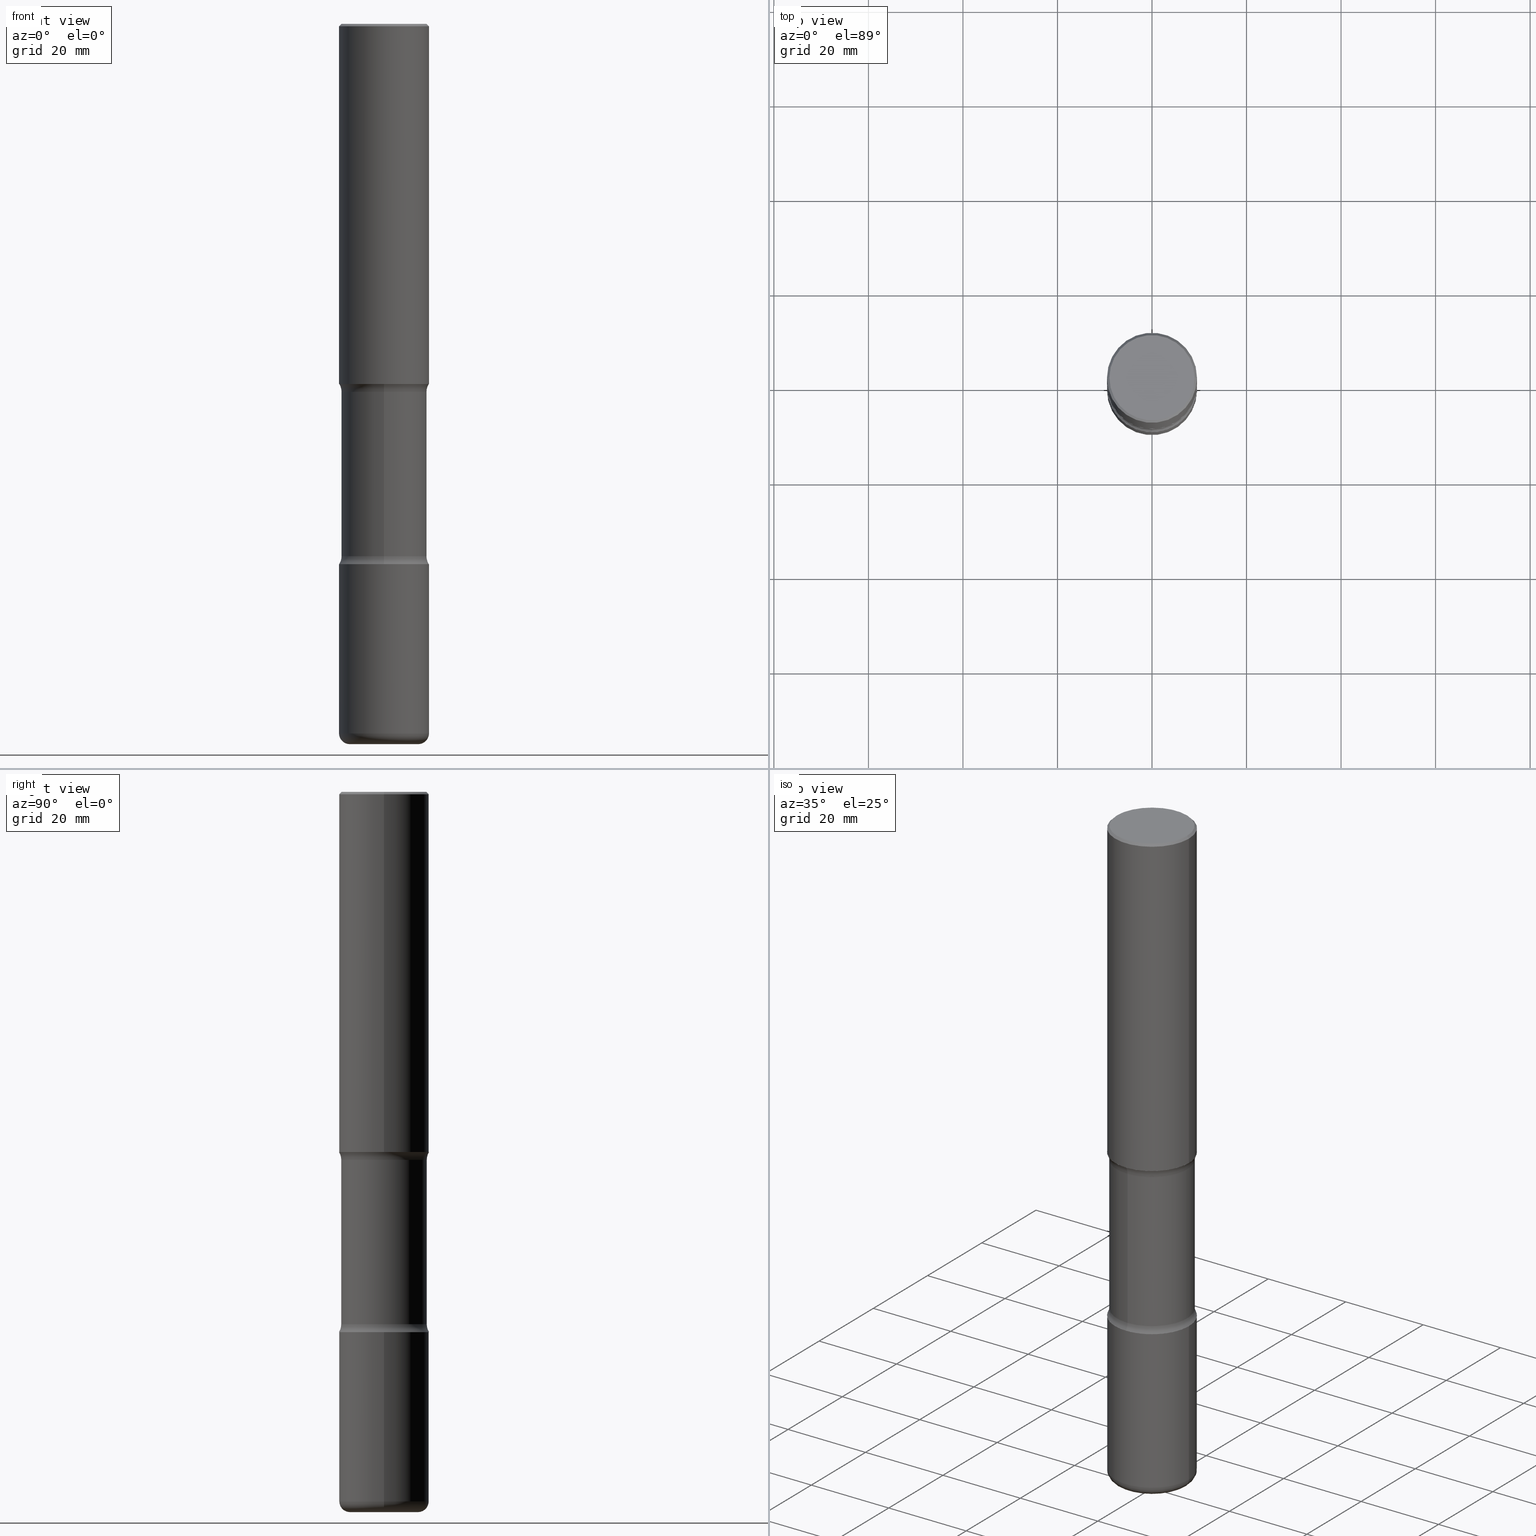
[diagram: canonical four-view strip — front | top / right | iso, engineering-drawing reading convention]
A machine part, canonical four-view strip (front | top / right | iso — engineering-drawing reading convention). The complete STEP part file that produces these views, byte-faithful:
ISO-10303-21;
HEADER;
FILE_DESCRIPTION (( 'STEP AP203' ),
    '1' );
FILE_NAME ('37938.STEP',
    '2024-03-02T01:35:51',
    ( '' ),
    ( '' ),
    'SwSTEP 2.0',
    'SolidWorks 2023',
    '' );
FILE_SCHEMA (( 'CONFIG_CONTROL_DESIGN' ));
ENDSEC;

DATA;
#1 = CARTESIAN_POINT ( 'NONE',  ( 3.360550788636623928E-15, 0.4812499999999845790, -4.434152164044672162 ) ) ;
#2 = CARTESIAN_POINT ( 'NONE',  ( -2.444052411705960129E-15, -0.3562500000000208278, -5.999999999999998224 ) ) ;
#3 = EDGE_CURVE ( 'NONE', #179, #553, #24, .T. ) ;
#4 = EDGE_CURVE ( 'NONE', #153, #480, #57, .T. ) ;
#5 = DIRECTION ( 'NONE',  ( 1.000000000000000000, -6.982962677686265922E-15, 0.000000000000000000 ) ) ;
#6 = AXIS2_PLACEMENT_3D ( 'NONE', #15, #309, #532 ) ;
#7 = CLOSED_SHELL ( 'NONE', ( #509, #275, #30, #390, #97, #241 ) ) ;
#8 = AXIS2_PLACEMENT_3D ( 'NONE', #310, #113, #143 ) ;
#9 = EDGE_LOOP ( 'NONE', ( #223, #460, #160, #371 ) ) ;
#10 = DIRECTION ( 'NONE',  ( -2.445468806185136597E-29, 3.491481338843145583E-15, 1.000000000000000000 ) ) ;
#11 = ORIENTED_EDGE ( 'NONE', *, *, #488, .F. ) ;
#12 = CARTESIAN_POINT ( 'NONE',  ( -0.3750000000000001110, 2.548781377355487113E-15, -0.02000000000000006981 ) ) ;
#13 = DIRECTION ( 'NONE',  ( 2.438088387897960049E-29, -3.491481338843145188E-15, -1.000000000000000000 ) ) ;
#14 = AXIS2_PLACEMENT_3D ( 'NONE', #116, #285, #466 ) ;
#15 = CARTESIAN_POINT ( 'NONE',  ( 4.890937612370289799E-31, -6.982962677686315028E-17, -0.02000000000000006981 ) ) ;
#16 = FACE_OUTER_BOUND ( 'NONE', #504, .T. ) ;
#17 = DESIGN_CONTEXT ( 'detailed design', #214, 'design' ) ;
#18 = CARTESIAN_POINT ( 'NONE',  ( -0.2850000000000005307, -1.860960791564669344E-14, -5.909999999999997478 ) ) ;
#19 = EDGE_CURVE ( 'NONE', #446, #533, #492, .T. ) ;
#20 = DIRECTION ( 'NONE',  ( 6.982962677686265922E-15, 1.000000000000000000, -3.401578717594097873E-15 ) ) ;
#21 = ORIENTED_EDGE ( 'NONE', *, *, #386, .T. ) ;
#22 = EDGE_LOOP ( 'NONE', ( #283, #112 ) ) ;
#23 = CIRCLE ( 'NONE', #191, 0.2850000000000005307 ) ;
#24 = CIRCLE ( 'NONE', #335, 0.3750000000000004996 ) ;
#25 = DIRECTION ( 'NONE',  ( -6.982962677686265922E-15, -1.000000000000000000, 3.401578717594097873E-15 ) ) ;
#26 = CIRCLE ( 'NONE', #192, 0.2850000000000005307 ) ;
#27 = CARTESIAN_POINT ( 'NONE',  ( 4.890937612370289799E-31, -6.982962677686315028E-17, -0.02000000000000006981 ) ) ;
#28 = DIRECTION ( 'NONE',  ( -2.445468806185136877E-29, 3.491481338843145188E-15, 1.000000000000000000 ) ) ;
#29 = APPROVAL ( #499, 'UNSPECIFIED' ) ;
#30 = ADVANCED_FACE ( 'NONE', ( #16 ), #535, .T. ) ;
#31 = DIRECTION ( 'NONE',  ( -2.445468806185136877E-29, 3.491481338843145188E-15, 1.000000000000000000 ) ) ;
#32 = PERSON_AND_ORGANIZATION ( #346, #381 ) ;
#33 = CIRCLE ( 'NONE', #558, 0.3750000000000003886 ) ;
#34 = AXIS2_PLACEMENT_3D ( 'NONE', #292, #473, #84 ) ;
#35 = FACE_OUTER_BOUND ( 'NONE', #367, .T. ) ;
#36 = DIRECTION ( 'NONE',  ( 1.000000000000000000, -6.982962677686252511E-15, 0.000000000000000000 ) ) ;
#37 = EDGE_CURVE ( 'NONE', #185, #153, #166, .T. ) ;
#38 = ORIENTED_EDGE ( 'NONE', *, *, #348, .T. ) ;
#39 = PERSON_AND_ORGANIZATION ( #346, #381 ) ;
#40 = ORIENTED_EDGE ( 'NONE', *, *, #4, .T. ) ;
#41 = FACE_OUTER_BOUND ( 'NONE', #200, .T. ) ;
#42 = PERSON_AND_ORGANIZATION ( #346, #381 ) ;
#43 = PRODUCT_DEFINITION_FORMATION_WITH_SPECIFIED_SOURCE ( 'ANY', '', #461, .NOT_KNOWN. ) ;
#44 = DIRECTION ( 'NONE',  ( 1.000000000000000000, -6.982962677686265922E-15, 4.876176775795935793E-29 ) ) ;
#45 = DIRECTION ( 'NONE',  ( 1.000000000000000000, -6.982962677686265922E-15, 0.000000000000000000 ) ) ;
#46 = ORIENTED_EDGE ( 'NONE', *, *, #348, .F. ) ;
#47 = DIRECTION ( 'NONE',  ( 6.982962677686265922E-15, 1.000000000000000000, -2.913971193241877611E-15 ) ) ;
#48 = CC_DESIGN_DATE_AND_TIME_ASSIGNMENT ( #250, #471, ( #319 ) ) ;
#49 = VERTEX_POINT ( 'NONE', #322 ) ;
#50 = DIRECTION ( 'NONE',  ( -1.000000000000000000, 6.982962677686265922E-15, -4.876176775795935793E-29 ) ) ;
#51 = AXIS2_PLACEMENT_3D ( 'NONE', #436, #518, #350 ) ;
#52 = VECTOR ( 'NONE', #313, 39.37007874015748143 ) ;
#53 = AXIS2_PLACEMENT_3D ( 'NONE', #126, #389, #56 ) ;
#54 = CYLINDRICAL_SURFACE ( 'NONE', #287, 0.3750000000000004441 ) ;
#55 = EDGE_CURVE ( 'NONE', #456, #470, #140, .T. ) ;
#56 = DIRECTION ( 'NONE',  ( 1.000000000000000000, -6.982962677686266711E-15, 4.876231632511987623E-29 ) ) ;
#57 = LINE ( 'NONE', #272, #175 ) ;
#58 = AXIS2_PLACEMENT_3D ( 'NONE', #71, #63, #232 ) ;
#59 =( NAMED_UNIT ( * ) PLANE_ANGLE_UNIT ( ) SI_UNIT ( $, .RADIAN. ) );
#60 = CARTESIAN_POINT ( 'NONE',  ( 0.3750000000000003886, -1.833027702892650691E-14, -4.499999999999999112 ) ) ;
#61 = EDGE_CURVE ( 'NONE', #446, #470, #355, .T. ) ;
#62 = PLANE ( 'NONE',  #173 ) ;
#63 = DIRECTION ( 'NONE',  ( 2.508247471065963170E-29, -3.401578717594097873E-15, -1.000000000000000000 ) ) ;
#64 = CC_DESIGN_PERSON_AND_ORGANIZATION_ASSIGNMENT ( #325, #111, ( #43 ) ) ;
#65 = DIRECTION ( 'NONE',  ( -2.445468806185136597E-29, 3.491481338843145583E-15, 1.000000000000000000 ) ) ;
#66 = CARTESIAN_POINT ( 'NONE',  ( 2.487680453925879638E-15, 0.3562499999999791389, -6.000000000000000888 ) ) ;
#67 = CC_DESIGN_SECURITY_CLASSIFICATION ( #349, ( #43 ) ) ;
#68 = ORIENTED_EDGE ( 'NONE', *, *, #19, .F. ) ;
#69 = FACE_OUTER_BOUND ( 'NONE', #107, .T. ) ;
#70 = TOROIDAL_SURFACE ( 'NONE', #58, 0.4812499999999999556, 0.1249999999999999584 ) ;
#71 = CARTESIAN_POINT ( 'NONE',  ( 7.402053284434616373E-29, -1.084094290665388719E-14, -3.065847835955329614 ) ) ;
#72 = ORIENTED_EDGE ( 'NONE', *, *, #320, .F. ) ;
#73 = ORIENTED_EDGE ( 'NONE', *, *, #55, .F. ) ;
#74 = CARTESIAN_POINT ( 'NONE',  ( 1.083944695982298980E-28, -1.548767942740887449E-14, -4.434152164044669497 ) ) ;
#75 = APPROVAL_ROLE ( '' ) ;
#76 = VERTEX_POINT ( 'NONE', #60 ) ;
#77 = CARTESIAN_POINT ( 'NONE',  ( 0.000000000000000000, 0.000000000000000000, 0.000000000000000000 ) ) ;
#78 = ORIENTED_EDGE ( 'NONE', *, *, #127, .T. ) ;
#79 = AXIS2_PLACEMENT_3D ( 'NONE', #196, #189, #490 ) ;
#80 = AXIS2_PLACEMENT_3D ( 'NONE', #435, #135, #305 ) ;
#81 = ORIENTED_EDGE ( 'NONE', *, *, #258, .T. ) ;
#82 = ORIENTED_EDGE ( 'NONE', *, *, #3, .T. ) ;
#83 = COORDINATED_UNIVERSAL_TIME_OFFSET ( 5, 0, .BEHIND. ) ;
#84 = DIRECTION ( 'NONE',  ( 6.982962677686265922E-15, 1.000000000000000000, -3.401578717594097873E-15 ) ) ;
#85 = PERSON_AND_ORGANIZATION_ROLE ( 'design_owner' ) ;
#86 = CARTESIAN_POINT ( 'NONE',  ( 2.618611004132426142E-15, 0.3749999999999898415, -3.000000000000000444 ) ) ;
#87 = EDGE_CURVE ( 'NONE', #216, #330, #26, .T. ) ;
#88 = DIRECTION ( 'NONE',  ( 2.508247471065963170E-29, -3.401578717594097873E-15, -1.000000000000000000 ) ) ;
#89 = CIRCLE ( 'NONE', #211, 0.1249999999999998335 ) ;
#90 = CARTESIAN_POINT ( 'NONE',  ( -0.2850000000000005307, -1.844698034480258891E-14, -5.999999999999998224 ) ) ;
#91 = DIRECTION ( 'NONE',  ( 1.000000000000000000, -6.982962677686270655E-15, 4.883557194083114583E-29 ) ) ;
#92 = CARTESIAN_POINT ( 'NONE',  ( -0.3750000000000003886, -1.550862510957819116E-14, -4.499999999999999112 ) ) ;
#93 = CC_DESIGN_APPROVAL ( #468, ( #43 ) ) ;
#94 = EDGE_CURVE ( 'NONE', #337, #179, #138, .T. ) ;
#95 = DIRECTION ( 'NONE',  ( 6.982962677686265133E-15, 1.000000000000000000, -3.067338098149347905E-15 ) ) ;
#96 =( NAMED_UNIT ( * ) SI_UNIT ( $, .STERADIAN. ) SOLID_ANGLE_UNIT ( ) );
#97 = ADVANCED_FACE ( 'NONE', ( #399 ), #442, .F. ) ;
#98 = ORIENTED_EDGE ( 'NONE', *, *, #428, .F. ) ;
#99 = AXIS2_PLACEMENT_3D ( 'NONE', #536, #450, #539 ) ;
#100 = CLOSED_SHELL ( 'NONE', ( #398, #225, #521, #125, #299, #505, #293, #487 ) ) ;
#101 = TOROIDAL_SURFACE ( 'NONE', #514, 0.4812500000000000666, 0.1249999999999998612 ) ;
#102 = DIRECTION ( 'NONE',  ( 0.000000000000000000, 0.000000000000000000, 1.000000000000000000 ) ) ;
#103 = PRODUCT_RELATED_PRODUCT_CATEGORY ( 'detail', '', ( #461 ) ) ;
#104 = CARTESIAN_POINT ( 'NONE',  ( 7.242238421234168109E-29, -1.060929794840300496E-14, -2.999999999999999112 ) ) ;
#105 = DIRECTION ( 'NONE',  ( 1.000000000000000000, 0.000000000000000000, 0.000000000000000000 ) ) ;
#106 = DIRECTION ( 'NONE',  ( -2.445468806185136597E-29, 3.491481338843145583E-15, 1.000000000000000000 ) ) ;
#107 = EDGE_LOOP ( 'NONE', ( #78, #81, #495, #73 ) ) ;
#108 = EDGE_CURVE ( 'NONE', #330, #153, #408, .T. ) ;
#109 = LINE ( 'NONE', #66, #437 ) ;
#110 = VERTEX_POINT ( 'NONE', #366 ) ;
#111 = PERSON_AND_ORGANIZATION_ROLE ( 'design_supplier' ) ;
#112 = ORIENTED_EDGE ( 'NONE', *, *, #320, .T. ) ;
#113 = DIRECTION ( 'NONE',  ( -1.000000000000000000, 6.982962677686265922E-15, -4.883557194083112901E-29 ) ) ;
#114 = CALENDAR_DATE ( 2024, 1, 3 ) ;
#115 = DIRECTION ( 'NONE',  ( -2.445468806185136597E-29, 3.491481338843145583E-15, 1.000000000000000000 ) ) ;
#116 = CARTESIAN_POINT ( 'NONE',  ( 4.890937612370289799E-31, -6.982962677686315028E-17, -0.02000000000000006981 ) ) ;
#117 = CIRCLE ( 'NONE', #324, 0.3750000000000003886 ) ;
#118 = APPROVAL_PERSON_ORGANIZATION ( #378, #303, #155 ) ;
#119 = APPROVAL_DATE_TIME ( #368, #29 ) ;
#120 = TOROIDAL_SURFACE ( 'NONE', #439, 0.2850000000000005307, 0.09000000000000020484 ) ;
#121 = LINE ( 'NONE', #207, #478 ) ;
#122 = PLANE ( 'NONE',  #247 ) ;
#123 = ORIENTED_EDGE ( 'NONE', *, *, #375, .F. ) ;
#124 = CC_DESIGN_PERSON_AND_ORGANIZATION_ASSIGNMENT ( #280, #85, ( #461 ) ) ;
#125 = ADVANCED_FACE ( 'NONE', ( #448 ), #70, .F. ) ;
#126 = CARTESIAN_POINT ( 'NONE',  ( -1.043851414335219820E-46, 1.490343170380447200E-32, 4.268512490100411279E-18 ) ) ;
#127 = EDGE_CURVE ( 'NONE', #456, #110, #117, .T. ) ;
#128 = CARTESIAN_POINT ( 'NONE',  ( 2.487680453925806274E-15, 0.3562499999999891309, -3.065847835955330503 ) ) ;
#129 = APPLICATION_CONTEXT ( 'configuration controlled 3d designs of mechanical parts and assemblies' ) ;
#130 = CIRCLE ( 'NONE', #203, 0.3750000000000004996 ) ;
#131 = LINE ( 'NONE', #2, #144 ) ;
#132 = EDGE_LOOP ( 'NONE', ( #141, #419 ) ) ;
#133 = DIRECTION ( 'NONE',  ( 2.508247471065963170E-29, -3.401578717594097873E-15, -1.000000000000000000 ) ) ;
#134 = EDGE_CURVE ( 'NONE', #337, #502, #109, .T. ) ;
#135 = DIRECTION ( 'NONE',  ( 2.438088387897960049E-29, -3.491481338843145188E-15, -1.000000000000000000 ) ) ;
#136 = ORIENTED_EDGE ( 'NONE', *, *, #300, .T. ) ;
#137 = APPROVAL_PERSON_ORGANIZATION ( #32, #468, #75 ) ;
#138 = CIRCLE ( 'NONE', #8, 0.1249999999999999584 ) ;
#139 = CARTESIAN_POINT ( 'NONE',  ( 7.402053284434616373E-29, -1.084094290665388719E-14, -3.065847835955329614 ) ) ;
#140 = LINE ( 'NONE', #316, #288 ) ;
#141 = ORIENTED_EDGE ( 'NONE', *, *, #428, .T. ) ;
#142 = DIRECTION ( 'NONE',  ( 1.000000000000000000, -6.982962677686261189E-15, 0.000000000000000000 ) ) ;
#143 = DIRECTION ( 'NONE',  ( -6.982962677686265133E-15, -1.000000000000000000, 0.000000000000000000 ) ) ;
#144 = VECTOR ( 'NONE', #172, 39.37007874015748143 ) ;
#145 = LENGTH_MEASURE_WITH_UNIT ( LENGTH_MEASURE( 0.02539999999999999897 ), #358 );
#146 = DIRECTION ( 'NONE',  ( -2.445468806185136877E-29, 3.491481338843145188E-15, 1.000000000000000000 ) ) ;
#147 = FACE_OUTER_BOUND ( 'NONE', #294, .T. ) ;
#148 = EDGE_LOOP ( 'NONE', ( #400, #239 ) ) ;
#149 = DIRECTION ( 'NONE',  ( 1.000000000000000000, -6.982962677686261189E-15, 0.000000000000000000 ) ) ;
#150 = EDGE_CURVE ( 'NONE', #165, #470, #500, .T. ) ;
#151 = SHAPE_DEFINITION_REPRESENTATION ( #281, #556 ) ;
#152 = MANIFOLD_SOLID_BREP ( 'Body-Move/Copy2[4]', #100 ) ;
#153 = VERTEX_POINT ( 'NONE', #383 ) ;
#154 = DIRECTION ( 'NONE',  ( -1.000000000000000000, 6.982962677686265922E-15, 0.000000000000000000 ) ) ;
#155 = APPROVAL_ROLE ( '' ) ;
#156 = CARTESIAN_POINT ( 'NONE',  ( 7.407401089244291879E-29, -1.083328454578828421E-14, -3.065847835955329614 ) ) ;
#157 = EDGE_CURVE ( 'NONE', #49, #538, #227, .T. ) ;
#158 = ORIENTED_EDGE ( 'NONE', *, *, #61, .F. ) ;
#159 = CALENDAR_DATE ( 2024, 1, 3 ) ;
#160 = ORIENTED_EDGE ( 'NONE', *, *, #169, .F. ) ;
#161 = DIRECTION ( 'NONE',  ( 1.000000000000000000, -6.982962677686266711E-15, 4.876176775795935793E-29 ) ) ;
#162 = MANIFOLD_SOLID_BREP ( 'Body-Move/Copy2[2]', #7 ) ;
#163 = CC_DESIGN_DATE_AND_TIME_ASSIGNMENT ( #295, #208, ( #349 ) ) ;
#164 = DATE_AND_TIME ( #199, #431 ) ;
#165 = VERTEX_POINT ( 'NONE', #254 ) ;
#166 = CIRCLE ( 'NONE', #219, 0.3750000000000004996 ) ;
#167 = AXIS2_PLACEMENT_3D ( 'NONE', #18, #187, #269 ) ;
#168 = DIRECTION ( 'NONE',  ( 1.000000000000000000, -6.982962677686265922E-15, 0.000000000000000000 ) ) ;
#169 = EDGE_CURVE ( 'NONE', #502, #538, #395, .T. ) ;
#170 = ORIENTED_EDGE ( 'NONE', *, *, #94, .F. ) ;
#171 = FACE_OUTER_BOUND ( 'NONE', #274, .T. ) ;
#172 = DIRECTION ( 'NONE',  ( 2.508247471065963170E-29, -3.401578717594097873E-15, -1.000000000000000000 ) ) ;
#173 = AXIS2_PLACEMENT_3D ( 'NONE', #352, #410, #25 ) ;
#174 = FACE_OUTER_BOUND ( 'NONE', #416, .T. ) ;
#175 = VECTOR ( 'NONE', #146, 39.37007874015748143 ) ;
#176 = CIRCLE ( 'NONE', #314, 0.3750000000000003886 ) ;
#177 = CARTESIAN_POINT ( 'NONE',  ( 0.000000000000000000, 0.000000000000000000, 0.000000000000000000 ) ) ;
#178 = CARTESIAN_POINT ( 'NONE',  ( 1.100460962783311244E-28, -1.571166602479415374E-14, -4.499999999999999112 ) ) ;
#179 = VERTEX_POINT ( 'NONE', #86 ) ;
#180 = DIRECTION ( 'NONE',  ( 1.000000000000000000, -6.982962677686263555E-15, 0.000000000000000000 ) ) ;
#181 = EDGE_CURVE ( 'NONE', #337, #249, #457, .T. ) ;
#182 = CIRCLE ( 'NONE', #286, 0.3750000000000003886 ) ;
#183 = CARTESIAN_POINT ( 'NONE',  ( 1.445272064455415119E-28, -2.063465471256298313E-14, -5.909999999999997478 ) ) ;
#184 = ADVANCED_FACE ( 'NONE', ( #171 ), #122, .F. ) ;
#185 = VERTEX_POINT ( 'NONE', #559 ) ;
#186 = APPLICATION_PROTOCOL_DEFINITION ( 'international standard', 'config_control_design', 1994, #129 ) ;
#187 = DIRECTION ( 'NONE',  ( 7.105427357601001859E-15, 1.000000000000000000, -3.491481338843145583E-15 ) ) ;
#188 = EDGE_LOOP ( 'NONE', ( #72, #265, #136, #198 ) ) ;
#189 = DIRECTION ( 'NONE',  ( 1.000000000000000000, -6.860497997771530774E-15, 4.841899869197618814E-29 ) ) ;
#190 = ORIENTED_EDGE ( 'NONE', *, *, #169, .T. ) ;
#191 = AXIS2_PLACEMENT_3D ( 'NONE', #315, #530, #142 ) ;
#192 = AXIS2_PLACEMENT_3D ( 'NONE', #455, #194, #149 ) ;
#193 = ADVANCED_FACE ( 'NONE', ( #430 ), #547, .T. ) ;
#194 = DIRECTION ( 'NONE',  ( -2.445468806185136597E-29, 3.491481338843145583E-15, 1.000000000000000000 ) ) ;
#195 = ORIENTED_EDGE ( 'NONE', *, *, #150, .F. ) ;
#196 = CARTESIAN_POINT ( 'NONE',  ( -3.301614661427474544E-15, -0.4812500000000108358, -3.065847835955327838 ) ) ;
#197 = DIRECTION ( 'NONE',  ( -2.445468806185136597E-29, 3.491481338843145583E-15, 1.000000000000000000 ) ) ;
#198 = ORIENTED_EDGE ( 'NONE', *, *, #233, .F. ) ;
#199 = CALENDAR_DATE ( 2024, 1, 3 ) ;
#200 = EDGE_LOOP ( 'NONE', ( #465, #414, #458, #190 ) ) ;
#201 = DIRECTION ( 'NONE',  ( 6.982962677686265922E-15, 1.000000000000000000, -3.401578717594097873E-15 ) ) ;
#202 = EDGE_CURVE ( 'NONE', #216, #185, #308, .T. ) ;
#203 = AXIS2_PLACEMENT_3D ( 'NONE', #347, #477, #180 ) ;
#204 = DIRECTION ( 'NONE',  ( 2.508247471065963170E-29, -3.401578717594097873E-15, -1.000000000000000000 ) ) ;
#205 = ORIENTED_EDGE ( 'NONE', *, *, #37, .F. ) ;
#206 = ORIENTED_EDGE ( 'NONE', *, *, #332, .T. ) ;
#207 = CARTESIAN_POINT ( 'NONE',  ( -0.3750000000000002220, 2.664535259100377275E-15, -1.844600658845590719E-29 ) ) ;
#208 = DATE_TIME_ROLE ( 'classification_date' ) ;
#209 = CYLINDRICAL_SURFACE ( 'NONE', #301, 0.3750000000000004441 ) ;
#210 = APPROVAL_PERSON_ORGANIZATION ( #253, #29, #376 ) ;
#211 = AXIS2_PLACEMENT_3D ( 'NONE', #1, #417, #369 ) ;
#212 = DIRECTION ( 'NONE',  ( -2.445468806185136597E-29, 3.491481338843145583E-15, 1.000000000000000000 ) ) ;
#213 = CYLINDRICAL_SURFACE ( 'NONE', #469, 0.3562500000000000111 ) ;
#214 = APPLICATION_CONTEXT ( 'configuration controlled 3d designs of mechanical parts and assemblies' ) ;
#215 = DIRECTION ( 'NONE',  ( 6.982962677686265133E-15, 1.000000000000000000, -3.067338098149347905E-15 ) ) ;
#216 = VERTEX_POINT ( 'NONE', #282 ) ;
#217 = ADVANCED_FACE ( 'NONE', ( #415 ), #209, .T. ) ;
#218 = LOCAL_TIME ( 20, 35, 51.00000000000000000, #506 ) ;
#219 = AXIS2_PLACEMENT_3D ( 'NONE', #183, #229, #238 ) ;
#220 = CIRCLE ( 'NONE', #537, 0.3750000000000003886 ) ;
#221 = LINE ( 'NONE', #12, #342 ) ;
#222 = PLANE ( 'NONE',  #80 ) ;
#223 = ORIENTED_EDGE ( 'NONE', *, *, #181, .T. ) ;
#224 = CIRCLE ( 'NONE', #403, 0.3750000000000003886 ) ;
#225 = ADVANCED_FACE ( 'NONE', ( #464 ), #101, .F. ) ;
#226 = CARTESIAN_POINT ( 'NONE',  ( -1.043851414335219820E-46, 1.490343170380447200E-32, 4.268512490100411279E-18 ) ) ;
#227 = CIRCLE ( 'NONE', #255, 0.1249999999999998335 ) ;
#228 = DIRECTION ( 'NONE',  ( -2.445468806185136597E-29, 3.491481338843145583E-15, 1.000000000000000000 ) ) ;
#229 = DIRECTION ( 'NONE',  ( -2.445468806185136597E-29, 3.491481338843145583E-15, 1.000000000000000000 ) ) ;
#230 = ORIENTED_EDGE ( 'NONE', *, *, #375, .T. ) ;
#231 = DIRECTION ( 'NONE',  ( 1.000000000000000000, -6.982962677686266711E-15, 4.876176775795935793E-29 ) ) ;
#232 = DIRECTION ( 'NONE',  ( 6.982962677686265922E-15, 1.000000000000000000, -3.401578717594097873E-15 ) ) ;
#233 = EDGE_CURVE ( 'NONE', #373, #502, #89, .T. ) ;
#234 = CARTESIAN_POINT ( 'NONE',  ( 2.487680453925840195E-15, 0.3562499999999844680, -4.434152164044670386 ) ) ;
#235 = DIRECTION ( 'NONE',  ( 2.508247471065963170E-29, -3.401578717594097873E-15, -1.000000000000000000 ) ) ;
#236 = TOROIDAL_SURFACE ( 'NONE', #370, 0.4812500000000000666, 0.1249999999999998612 ) ;
#237 = DIRECTION ( 'NONE',  ( 1.000000000000000000, -6.982962677686265922E-15, 0.000000000000000000 ) ) ;
#238 = DIRECTION ( 'NONE',  ( 1.000000000000000000, -6.982962677686263555E-15, 0.000000000000000000 ) ) ;
#239 = ORIENTED_EDGE ( 'NONE', *, *, #420, .F. ) ;
#240 = APPROVAL_STATUS ( 'not_yet_approved' ) ;
#241 = ADVANCED_FACE ( 'NONE', ( #35 ), #374, .T. ) ;
#242 = DIRECTION ( 'NONE',  ( 6.982962677686265133E-15, 1.000000000000000000, -3.067338098149347905E-15 ) ) ;
#243 = ORIENTED_EDGE ( 'NONE', *, *, #363, .F. ) ;
#244 = APPROVAL_DATE_TIME ( #462, #303 ) ;
#245 = CARTESIAN_POINT ( 'NONE',  ( 1.084358079904955852E-28, -1.548175953435291656E-14, -4.434152164044670386 ) ) ;
#246 = TOROIDAL_SURFACE ( 'NONE', #513, 0.4812499999999999556, 0.1249999999999999584 ) ;
#247 = AXIS2_PLACEMENT_3D ( 'NONE', #459, #517, #555 ) ;
#248 = FACE_OUTER_BOUND ( 'NONE', #406, .T. ) ;
#249 = VERTEX_POINT ( 'NONE', #296 ) ;
#250 = DATE_AND_TIME ( #554, #467 ) ;
#251 = DIRECTION ( 'NONE',  ( 6.982962677686265133E-15, 1.000000000000000000, -3.067338098149347905E-15 ) ) ;
#252 = ORIENTED_EDGE ( 'NONE', *, *, #516, .F. ) ;
#253 = PERSON_AND_ORGANIZATION ( #346, #381 ) ;
#254 = CARTESIAN_POINT ( 'NONE',  ( -0.3750000000000001110, 2.548781377355487113E-15, -0.02000000000000006981 ) ) ;
#255 = AXIS2_PLACEMENT_3D ( 'NONE', #340, #475, #329 ) ;
#256 = CARTESIAN_POINT ( 'NONE',  ( 1.083944695982298980E-28, -1.548767942740887449E-14, -4.434152164044669497 ) ) ;
#257 = DIRECTION ( 'NONE',  ( 2.508247471065963170E-29, -3.401578717594097873E-15, -1.000000000000000000 ) ) ;
#258 = EDGE_CURVE ( 'NONE', #110, #165, #121, .T. ) ;
#259 = FACE_OUTER_BOUND ( 'NONE', #361, .T. ) ;
#260 = CC_DESIGN_APPROVAL ( #29, ( #319 ) ) ;
#261 = CARTESIAN_POINT ( 'NONE',  ( 1.100460962783311244E-28, -1.571166602479415374E-14, -4.499999999999999112 ) ) ;
#262 = AXIS2_PLACEMENT_3D ( 'NONE', #27, #197, #168 ) ;
#263 = CARTESIAN_POINT ( 'NONE',  ( 7.407401089244291879E-29, -1.083328454578828421E-14, -3.065847835955329614 ) ) ;
#264 =( CONVERSION_BASED_UNIT ( 'INCH', #145 ) LENGTH_UNIT ( ) NAMED_UNIT ( #298 ) );
#265 = ORIENTED_EDGE ( 'NONE', *, *, #157, .T. ) ;
#266 = AXIS2_PLACEMENT_3D ( 'NONE', #552, #548, #161 ) ;
#267 = EDGE_LOOP ( 'NONE', ( #528, #38, #549, #11 ) ) ;
#268 = DIRECTION ( 'NONE',  ( 6.982962677686265922E-15, 1.000000000000000000, -2.913971193241877611E-15 ) ) ;
#269 = DIRECTION ( 'NONE',  ( -1.000000000000000000, 7.105427357601017636E-15, 0.000000000000000000 ) ) ;
#270 = CYLINDRICAL_SURFACE ( 'NONE', #99, 0.3562500000000000111 ) ;
#271 = ORIENTED_EDGE ( 'NONE', *, *, #108, .T. ) ;
#272 = CARTESIAN_POINT ( 'NONE',  ( -0.3750000000000004441, 2.664535259100378852E-15, -1.844600658845591840E-29 ) ) ;
#273 =( GEOMETRIC_REPRESENTATION_CONTEXT ( 3 ) GLOBAL_UNCERTAINTY_ASSIGNED_CONTEXT ( ( #557 ) ) GLOBAL_UNIT_ASSIGNED_CONTEXT ( ( #264, #59, #96 ) ) REPRESENTATION_CONTEXT ( 'NONE', 'WORKASPACE' ) );
#274 = EDGE_LOOP ( 'NONE', ( #21, #407 ) ) ;
#275 = ADVANCED_FACE ( 'NONE', ( #510 ), #485, .T. ) ;
#276 = PERSON_AND_ORGANIZATION_ROLE ( 'creator' ) ;
#277 = ORIENTED_EDGE ( 'NONE', *, *, #544, .T. ) ;
#278 = DIRECTION ( 'NONE',  ( 1.000000000000000000, -6.982962677686270655E-15, 4.883557194083114583E-29 ) ) ;
#279 = EDGE_LOOP ( 'NONE', ( #68, #445, #379, #356 ) ) ;
#280 = PERSON_AND_ORGANIZATION ( #346, #381 ) ;
#281 = PRODUCT_DEFINITION_SHAPE ( 'NONE', 'NONE',  #319 ) ;
#282 = CARTESIAN_POINT ( 'NONE',  ( 0.2850000000000005307, -2.293903239619945620E-14, -5.999999999999998224 ) ) ;
#283 = ORIENTED_EDGE ( 'NONE', *, *, #482, .T. ) ;
#284 = COORDINATED_UNIVERSAL_TIME_OFFSET ( 5, 0, .BEHIND. ) ;
#285 = DIRECTION ( 'NONE',  ( 2.445468806185136597E-29, -3.491481338843145583E-15, -1.000000000000000000 ) ) ;
#286 = AXIS2_PLACEMENT_3D ( 'NONE', #178, #257, #47 ) ;
#287 = AXIS2_PLACEMENT_3D ( 'NONE', #177, #344, #524 ) ;
#288 = VECTOR ( 'NONE', #31, 39.37007874015748143 ) ;
#289 = ORIENTED_EDGE ( 'NONE', *, *, #87, .T. ) ;
#290 = CIRCLE ( 'NONE', #53, 0.3550000000000000377 ) ;
#291 = COORDINATED_UNIVERSAL_TIME_OFFSET ( 5, 0, .BEHIND. ) ;
#292 = CARTESIAN_POINT ( 'NONE',  ( 7.336406418555407548E-29, -1.047444401652943320E-14, -2.999999999999999112 ) ) ;
#293 = ADVANCED_FACE ( 'NONE', ( #41 ), #236, .F. ) ;
#294 = EDGE_LOOP ( 'NONE', ( #339, #230, #359, #426 ) ) ;
#295 = DATE_AND_TIME ( #159, #454 ) ;
#296 = CARTESIAN_POINT ( 'NONE',  ( -2.508369580435144205E-15, -0.3562500000000108358, -3.065847835955328282 ) ) ;
#297 = CARTESIAN_POINT ( 'NONE',  ( 2.618611004132461246E-15, 0.3749999999999845124, -4.500000000000000888 ) ) ;
#298 = DIMENSIONAL_EXPONENTS ( 1.000000000000000000, 0.000000000000000000, 0.000000000000000000, 0.000000000000000000, 0.000000000000000000, 0.000000000000000000, 0.000000000000000000 ) ;
#299 = ADVANCED_FACE ( 'NONE', ( #248 ), #380, .F. ) ;
#300 = EDGE_CURVE ( 'NONE', #538, #502, #560, .T. ) ;
#301 = AXIS2_PLACEMENT_3D ( 'NONE', #77, #212, #44 ) ;
#302 = DIRECTION ( 'NONE',  ( -2.445468806185136597E-29, 3.491481338843145583E-15, 1.000000000000000000 ) ) ;
#303 = APPROVAL ( #542, 'UNSPECIFIED' ) ;
#304 = CARTESIAN_POINT ( 'NONE',  ( 1.445272064455415119E-28, -2.063465471256298313E-14, -5.909999999999997478 ) ) ;
#305 = DIRECTION ( 'NONE',  ( -1.000000000000000000, 6.982962677686265922E-15, -4.876176775795935793E-29 ) ) ;
#306 = AXIS2_PLACEMENT_3D ( 'NONE', #394, #228, #231 ) ;
#307 = CARTESIAN_POINT ( 'NONE',  ( 1.476698083443205790E-28, -2.081403410118529621E-14, -5.999999999999999112 ) ) ;
#308 = CIRCLE ( 'NONE', #357, 0.09000000000000020484 ) ;
#309 = DIRECTION ( 'NONE',  ( -2.445468806185136597E-29, 3.491481338843145583E-15, 1.000000000000000000 ) ) ;
#310 = CARTESIAN_POINT ( 'NONE',  ( 3.360550788636589613E-15, 0.4812499999999890754, -3.065847835955331391 ) ) ;
#311 = CARTESIAN_POINT ( 'NONE',  ( -0.3550000000000000377, 2.513866563967055858E-15, 4.268512490082953109E-18 ) ) ;
#312 = AXIS2_PLACEMENT_3D ( 'NONE', #226, #318, #397 ) ;
#313 = DIRECTION ( 'NONE',  ( 0.7071067811865472397, -7.319954787623254468E-15, -0.7071067811865477948 ) ) ;
#314 = AXIS2_PLACEMENT_3D ( 'NONE', #522, #525, #45 ) ;
#315 = CARTESIAN_POINT ( 'NONE',  ( 1.467281283711081510E-28, -2.094888803305886640E-14, -5.999999999999998224 ) ) ;
#316 = CARTESIAN_POINT ( 'NONE',  ( 0.3750000000000002220, -2.618611004132351594E-15, 1.828566290923477043E-29 ) ) ;
#317 = DIRECTION ( 'NONE',  ( 2.508247471065963170E-29, -3.401578717594097873E-15, -1.000000000000000000 ) ) ;
#318 = DIRECTION ( 'NONE',  ( -2.445468806185136597E-29, 3.491481338843145583E-15, 1.000000000000000000 ) ) ;
#319 = PRODUCT_DEFINITION ( 'UNKNOWN', '', #43, #17 ) ;
#320 = EDGE_CURVE ( 'NONE', #49, #373, #182, .T. ) ;
#321 = PERSON_AND_ORGANIZATION_ROLE ( 'creator' ) ;
#322 = CARTESIAN_POINT ( 'NONE',  ( -2.572686749164215473E-15, -0.3750000000000159317, -4.499999999999998224 ) ) ;
#323 = ORIENTED_EDGE ( 'NONE', *, *, #363, .T. ) ;
#324 = AXIS2_PLACEMENT_3D ( 'NONE', #402, #106, #451 ) ;
#325 = PERSON_AND_ORGANIZATION ( #346, #381 ) ;
#326 = DIRECTION ( 'NONE',  ( 2.508247471065963170E-29, -3.401578717594097873E-15, -1.000000000000000000 ) ) ;
#327 = ORIENTED_EDGE ( 'NONE', *, *, #94, .T. ) ;
#328 = ORIENTED_EDGE ( 'NONE', *, *, #37, .T. ) ;
#329 = DIRECTION ( 'NONE',  ( 6.860497997771531562E-15, 1.000000000000000000, 0.000000000000000000 ) ) ;
#330 = VERTEX_POINT ( 'NONE', #90 ) ;
#331 = APPROVAL_DATE_TIME ( #164, #468 ) ;
#332 = EDGE_CURVE ( 'NONE', #533, #165, #221, .T. ) ;
#333 = DIRECTION ( 'NONE',  ( -6.982962677686266711E-15, -1.000000000000000000, 3.491481338843145583E-15 ) ) ;
#334 = CC_DESIGN_APPROVAL ( #303, ( #349 ) ) ;
#335 = AXIS2_PLACEMENT_3D ( 'NONE', #104, #543, #411 ) ;
#336 = AXIS2_PLACEMENT_3D ( 'NONE', #507, #115, #278 ) ;
#337 = VERTEX_POINT ( 'NONE', #128 ) ;
#338 = DIRECTION ( 'NONE',  ( 2.508247471065963170E-29, -3.401578717594097873E-15, -1.000000000000000000 ) ) ;
#339 = ORIENTED_EDGE ( 'NONE', *, *, #409, .F. ) ;
#340 = CARTESIAN_POINT ( 'NONE',  ( -3.301614661427441806E-15, -0.4812500000000156097, -4.434152164044668609 ) ) ;
#341 = DIRECTION ( 'NONE',  ( -0.7071067811865472397, 2.468850131082253905E-15, -0.7071067811865477948 ) ) ;
#342 = VECTOR ( 'NONE', #341, 39.37007874015748143 ) ;
#343 = CARTESIAN_POINT ( 'NONE',  ( 0.3750000000000003886, -1.309305502066178637E-14, -2.999999999999999112 ) ) ;
#344 = DIRECTION ( 'NONE',  ( -2.445468806185136597E-29, 3.491481338843145583E-15, 1.000000000000000000 ) ) ;
#345 = ORIENTED_EDGE ( 'NONE', *, *, #87, .F. ) ;
#346 = PERSON ( 'UNSPECIFIED', 'UNSPECIFIED', 'UNSPECIFIED', ('UNSPECIFIED'), ('UNSPECIFIED'), ('UNSPECIFIED') ) ;
#347 = CARTESIAN_POINT ( 'NONE',  ( 1.445272064455415119E-28, -2.063465471256298313E-14, -5.909999999999997478 ) ) ;
#348 = EDGE_CURVE ( 'NONE', #153, #185, #130, .T. ) ;
#349 = SECURITY_CLASSIFICATION ( '', '', #425 ) ;
#350 = DIRECTION ( 'NONE',  ( 6.982962677686266711E-15, 1.000000000000000000, -2.913971193241876822E-15 ) ) ;
#351 = ORIENTED_EDGE ( 'NONE', *, *, #55, .T. ) ;
#352 = CARTESIAN_POINT ( 'NONE',  ( 1.100460962783311244E-28, -1.571166602479415374E-14, -4.499999999999999112 ) ) ;
#353 = ORIENTED_EDGE ( 'NONE', *, *, #516, .T. ) ;
#354 = CARTESIAN_POINT ( 'NONE',  ( -2.572686749164255311E-15, -0.3750000000000111577, -2.999999999999998224 ) ) ;
#355 = LINE ( 'NONE', #540, #52 ) ;
#356 = ORIENTED_EDGE ( 'NONE', *, *, #332, .F. ) ;
#357 = AXIS2_PLACEMENT_3D ( 'NONE', #515, #333, #36 ) ;
#358 =( LENGTH_UNIT ( ) NAMED_UNIT ( * ) SI_UNIT ( $, .METRE. ) );
#359 = ORIENTED_EDGE ( 'NONE', *, *, #134, .T. ) ;
#360 = AXIS2_PLACEMENT_3D ( 'NONE', #481, #13, #50 ) ;
#361 = EDGE_LOOP ( 'NONE', ( #328, #40, #503, #472 ) ) ;
#362 = CARTESIAN_POINT ( 'NONE',  ( 1.100460962783311244E-28, -1.571166602479415374E-14, -4.499999999999999112 ) ) ;
#363 = EDGE_CURVE ( 'NONE', #553, #179, #444, .T. ) ;
#364 = DIRECTION ( 'NONE',  ( 1.000000000000000000, -6.982962677686265922E-15, 4.876176775795935793E-29 ) ) ;
#365 = PERSON_AND_ORGANIZATION_ROLE ( 'classification_officer' ) ;
#366 = CARTESIAN_POINT ( 'NONE',  ( -0.3750000000000003886, -2.607601562552767029E-15, -2.999999999999999112 ) ) ;
#367 = EDGE_LOOP ( 'NONE', ( #519, #424, #351, #195 ) ) ;
#368 = DATE_AND_TIME ( #429, #388 ) ;
#369 = DIRECTION ( 'NONE',  ( -6.982962677686268288E-15, -1.000000000000000000, 0.000000000000000000 ) ) ;
#370 = AXIS2_PLACEMENT_3D ( 'NONE', #422, #512, #427 ) ;
#371 = ORIENTED_EDGE ( 'NONE', *, *, #134, .F. ) ;
#372 = APPLICATION_PROTOCOL_DEFINITION ( 'international standard', 'config_control_design', 1994, #214 ) ;
#373 = VERTEX_POINT ( 'NONE', #297 ) ;
#374 = CYLINDRICAL_SURFACE ( 'NONE', #266, 0.3750000000000002220 ) ;
#375 = EDGE_CURVE ( 'NONE', #249, #337, #421, .T. ) ;
#376 = APPROVAL_ROLE ( '' ) ;
#377 = DIRECTION ( 'NONE',  ( -2.445468806185136877E-29, 3.491481338843145188E-15, 1.000000000000000000 ) ) ;
#378 = PERSON_AND_ORGANIZATION ( #346, #381 ) ;
#379 = ORIENTED_EDGE ( 'NONE', *, *, #526, .T. ) ;
#380 = PLANE ( 'NONE',  #34 ) ;
#381 = ORGANIZATION ( 'UNSPECIFIED', 'UNSPECIFIED', '' ) ;
#382 = AXIS2_PLACEMENT_3D ( 'NONE', #263, #88, #95 ) ;
#383 = CARTESIAN_POINT ( 'NONE',  ( -0.3750000000000006661, -1.797011945346260428E-14, -5.909999999999997478 ) ) ;
#384 = CC_DESIGN_PERSON_AND_ORGANIZATION_ASSIGNMENT ( #550, #321, ( #319 ) ) ;
#385 = DIRECTION ( 'NONE',  ( 2.508247471065963170E-29, -3.401578717594097873E-15, -1.000000000000000000 ) ) ;
#386 = EDGE_CURVE ( 'NONE', #76, #480, #176, .T. ) ;
#387 = PLANE ( 'NONE',  #360 ) ;
#388 = LOCAL_TIME ( 20, 35, 51.00000000000000000, #83 ) ;
#389 = DIRECTION ( 'NONE',  ( -2.445468806185136597E-29, 3.491481338843145583E-15, 1.000000000000000000 ) ) ;
#390 = ADVANCED_FACE ( 'NONE', ( #486 ), #222, .F. ) ;
#391 = DIRECTION ( 'NONE',  ( 6.982962677686265133E-15, 1.000000000000000000, -3.067338098149347905E-15 ) ) ;
#392 = CARTESIAN_POINT ( 'NONE',  ( 0.3550000000000000377, -2.538996582575041048E-15, 4.268512490117958041E-18 ) ) ;
#393 = ORIENTED_EDGE ( 'NONE', *, *, #3, .F. ) ;
#394 = CARTESIAN_POINT ( 'NONE',  ( 0.000000000000000000, 0.000000000000000000, 0.000000000000000000 ) ) ;
#395 = CIRCLE ( 'NONE', #520, 0.3562500000000000111 ) ;
#396 = EDGE_LOOP ( 'NONE', ( #289, #271, #205, #413 ) ) ;
#397 = DIRECTION ( 'NONE',  ( 1.000000000000000000, -6.982962677686266711E-15, 4.876231632511987623E-29 ) ) ;
#398 = ADVANCED_FACE ( 'NONE', ( #433 ), #213, .T. ) ;
#399 = FACE_OUTER_BOUND ( 'NONE', #148, .T. ) ;
#400 = ORIENTED_EDGE ( 'NONE', *, *, #127, .F. ) ;
#401 = FACE_OUTER_BOUND ( 'NONE', #551, .T. ) ;
#402 = CARTESIAN_POINT ( 'NONE',  ( 7.336406418555407548E-29, -1.047444401652943320E-14, -2.999999999999999112 ) ) ;
#403 = AXIS2_PLACEMENT_3D ( 'NONE', #362, #65, #237 ) ;
#404 = FACE_OUTER_BOUND ( 'NONE', #22, .T. ) ;
#405 = AXIS2_PLACEMENT_3D ( 'NONE', #501, #531, #154 ) ;
#406 = EDGE_LOOP ( 'NONE', ( #393, #243 ) ) ;
#407 = ORIENTED_EDGE ( 'NONE', *, *, #488, .T. ) ;
#408 = CIRCLE ( 'NONE', #167, 0.09000000000000020484 ) ;
#409 = EDGE_CURVE ( 'NONE', #249, #538, #131, .T. ) ;
#410 = DIRECTION ( 'NONE',  ( -2.508247471065962609E-29, 3.401578717594097873E-15, 1.000000000000000000 ) ) ;
#411 = DIRECTION ( 'NONE',  ( 6.982962677686266711E-15, 1.000000000000000000, -2.913971193241876822E-15 ) ) ;
#412 = ORIENTED_EDGE ( 'NONE', *, *, #181, .F. ) ;
#413 = ORIENTED_EDGE ( 'NONE', *, *, #202, .F. ) ;
#414 = ORIENTED_EDGE ( 'NONE', *, *, #482, .F. ) ;
#415 = FACE_OUTER_BOUND ( 'NONE', #267, .T. ) ;
#416 = EDGE_LOOP ( 'NONE', ( #523, #353, #449, #46 ) ) ;
#417 = DIRECTION ( 'NONE',  ( -1.000000000000000000, 6.982962677686265922E-15, -4.883557194083112901E-29 ) ) ;
#418 = VECTOR ( 'NONE', #28, 39.37007874015748143 ) ;
#419 = ORIENTED_EDGE ( 'NONE', *, *, #19, .T. ) ;
#420 = EDGE_CURVE ( 'NONE', #110, #456, #220, .T. ) ;
#421 = CIRCLE ( 'NONE', #382, 0.3562500000000000111 ) ;
#422 = CARTESIAN_POINT ( 'NONE',  ( 1.084358079904955852E-28, -1.548175953435291656E-14, -4.434152164044670386 ) ) ;
#423 = ORIENTED_EDGE ( 'NONE', *, *, #544, .F. ) ;
#424 = ORIENTED_EDGE ( 'NONE', *, *, #420, .T. ) ;
#425 = SECURITY_CLASSIFICATION_LEVEL ( 'unclassified' ) ;
#426 = ORIENTED_EDGE ( 'NONE', *, *, #300, .F. ) ;
#427 = DIRECTION ( 'NONE',  ( 6.982962677686265922E-15, 1.000000000000000000, -3.401578717594097873E-15 ) ) ;
#428 = EDGE_CURVE ( 'NONE', #533, #446, #290, .T. ) ;
#429 = CALENDAR_DATE ( 2024, 1, 3 ) ;
#430 = FACE_OUTER_BOUND ( 'NONE', #396, .T. ) ;
#431 = LOCAL_TIME ( 20, 35, 51.00000000000000000, #284 ) ;
#432 = AXIS2_PLACEMENT_3D ( 'NONE', #256, #133, #391 ) ;
#433 = FACE_OUTER_BOUND ( 'NONE', #9, .T. ) ;
#434 = ORIENTED_EDGE ( 'NONE', *, *, #150, .T. ) ;
#435 = CARTESIAN_POINT ( 'NONE',  ( 2.478951750578624998E-15, 0.3550000000000000377, -1.237341619044266624E-15 ) ) ;
#436 = CARTESIAN_POINT ( 'NONE',  ( 7.242238421234168109E-29, -1.060929794840300496E-14, -2.999999999999999112 ) ) ;
#437 = VECTOR ( 'NONE', #235, 39.37007874015748143 ) ;
#438 = CIRCLE ( 'NONE', #6, 0.3750000000000001110 ) ;
#439 = AXIS2_PLACEMENT_3D ( 'NONE', #304, #10, #91 ) ;
#440 = DIRECTION ( 'NONE',  ( 2.508247471065963170E-29, -3.401578717594097873E-15, -1.000000000000000000 ) ) ;
#441 = CARTESIAN_POINT ( 'NONE',  ( 7.336406418555407548E-29, -1.047444401652943320E-14, -2.999999999999999112 ) ) ;
#442 = PLANE ( 'NONE',  #494 ) ;
#443 = CYLINDRICAL_SURFACE ( 'NONE', #306, 0.3750000000000002220 ) ;
#444 = CIRCLE ( 'NONE', #51, 0.3750000000000004996 ) ;
#445 = ORIENTED_EDGE ( 'NONE', *, *, #61, .T. ) ;
#446 = VERTEX_POINT ( 'NONE', #392 ) ;
#447 = LINE ( 'NONE', #529, #418 ) ;
#448 = FACE_OUTER_BOUND ( 'NONE', #541, .T. ) ;
#449 = ORIENTED_EDGE ( 'NONE', *, *, #202, .T. ) ;
#450 = DIRECTION ( 'NONE',  ( 2.508247471065963170E-29, -3.401578717594097873E-15, -1.000000000000000000 ) ) ;
#451 = DIRECTION ( 'NONE',  ( 1.000000000000000000, -6.982962677686265922E-15, 0.000000000000000000 ) ) ;
#452 = ADVANCED_FACE ( 'NONE', ( #479 ), #387, .T. ) ;
#453 = ADVANCED_FACE ( 'NONE', ( #174 ), #120, .T. ) ;
#454 = LOCAL_TIME ( 20, 35, 51.00000000000000000, #545 ) ;
#455 = CARTESIAN_POINT ( 'NONE',  ( 1.467281283711081510E-28, -2.094888803305886640E-14, -5.999999999999998224 ) ) ;
#456 = VERTEX_POINT ( 'NONE', #343 ) ;
#457 = CIRCLE ( 'NONE', #534, 0.3562500000000000111 ) ;
#458 = ORIENTED_EDGE ( 'NONE', *, *, #233, .T. ) ;
#459 = CARTESIAN_POINT ( 'NONE',  ( 1.100460962783311244E-28, -1.571166602479415374E-14, -4.499999999999999112 ) ) ;
#460 = ORIENTED_EDGE ( 'NONE', *, *, #409, .T. ) ;
#461 = PRODUCT ( '37938', '37938', '', ( #474 ) ) ;
#462 = DATE_AND_TIME ( #114, #218 ) ;
#463 = ADVANCED_FACE ( 'NONE', ( #259 ), #54, .T. ) ;
#464 = FACE_OUTER_BOUND ( 'NONE', #188, .T. ) ;
#465 = ORIENTED_EDGE ( 'NONE', *, *, #157, .F. ) ;
#466 = DIRECTION ( 'NONE',  ( -1.000000000000000000, 6.982962677686265922E-15, 0.000000000000000000 ) ) ;
#467 = LOCAL_TIME ( 20, 35, 51.00000000000000000, #291 ) ;
#468 = APPROVAL ( #240, 'UNSPECIFIED' ) ;
#469 = AXIS2_PLACEMENT_3D ( 'NONE', #307, #385, #215 ) ;
#470 = VERTEX_POINT ( 'NONE', #483 ) ;
#471 = DATE_TIME_ROLE ( 'creation_date' ) ;
#472 = ORIENTED_EDGE ( 'NONE', *, *, #489, .F. ) ;
#473 = DIRECTION ( 'NONE',  ( 2.508247471065962609E-29, -3.401578717594097873E-15, -1.000000000000000000 ) ) ;
#474 = MECHANICAL_CONTEXT ( 'NONE', #129, 'mechanical' ) ;
#475 = DIRECTION ( 'NONE',  ( 1.000000000000000000, -6.860497997771530774E-15, 4.841899869197618814E-29 ) ) ;
#476 = CC_DESIGN_PERSON_AND_ORGANIZATION_ASSIGNMENT ( #42, #276, ( #43 ) ) ;
#477 = DIRECTION ( 'NONE',  ( -2.445468806185136597E-29, 3.491481338843145583E-15, 1.000000000000000000 ) ) ;
#478 = VECTOR ( 'NONE', #377, 39.37007874015748143 ) ;
#479 = FACE_OUTER_BOUND ( 'NONE', #498, .T. ) ;
#480 = VERTEX_POINT ( 'NONE', #92 ) ;
#481 = CARTESIAN_POINT ( 'NONE',  ( 3.073714343152734857E-28, 2.056147703061211536E-15, -5.999999999999999112 ) ) ;
#482 = EDGE_CURVE ( 'NONE', #373, #49, #33, .T. ) ;
#483 = CARTESIAN_POINT ( 'NONE',  ( 0.3750000000000001110, -2.642516375941188423E-15, -0.02000000000000006981 ) ) ;
#484 = AXIS2_PLACEMENT_3D ( 'NONE', #493, #102, #105 ) ;
#485 = CONICAL_SURFACE ( 'NONE', #14, 0.3750000000000001110, 0.7853981633974479459 ) ;
#486 = FACE_OUTER_BOUND ( 'NONE', #132, .T. ) ;
#487 = ADVANCED_FACE ( 'NONE', ( #147 ), #270, .T. ) ;
#488 = EDGE_CURVE ( 'NONE', #480, #76, #224, .T. ) ;
#489 = EDGE_CURVE ( 'NONE', #185, #76, #447, .T. ) ;
#490 = DIRECTION ( 'NONE',  ( 6.860497997771532351E-15, 1.000000000000000000, 0.000000000000000000 ) ) ;
#491 = CARTESIAN_POINT ( 'NONE',  ( 7.336406418555407548E-29, -1.047444401652943320E-14, -2.999999999999999112 ) ) ;
#492 = CIRCLE ( 'NONE', #312, 0.3550000000000000377 ) ;
#493 = CARTESIAN_POINT ( 'NONE',  ( 0.000000000000000000, 0.000000000000000000, 0.000000000000000000 ) ) ;
#494 = AXIS2_PLACEMENT_3D ( 'NONE', #491, #497, #364 ) ;
#495 = ORIENTED_EDGE ( 'NONE', *, *, #526, .F. ) ;
#496 = CARTESIAN_POINT ( 'NONE',  ( -2.508369580435107128E-15, -0.3562500000000154987, -4.434152164044668609 ) ) ;
#497 = DIRECTION ( 'NONE',  ( -2.438088387897960049E-29, 3.491481338843145188E-15, 1.000000000000000000 ) ) ;
#498 = EDGE_LOOP ( 'NONE', ( #345, #252 ) ) ;
#499 = APPROVAL_STATUS ( 'not_yet_approved' ) ;
#500 = CIRCLE ( 'NONE', #262, 0.3750000000000001110 ) ;
#501 = CARTESIAN_POINT ( 'NONE',  ( 4.890937612370289799E-31, -6.982962677686315028E-17, -0.02000000000000006981 ) ) ;
#502 = VERTEX_POINT ( 'NONE', #234 ) ;
#503 = ORIENTED_EDGE ( 'NONE', *, *, #386, .F. ) ;
#504 = EDGE_LOOP ( 'NONE', ( #158, #98, #206, #434 ) ) ;
#505 = ADVANCED_FACE ( 'NONE', ( #404 ), #62, .F. ) ;
#506 = COORDINATED_UNIVERSAL_TIME_OFFSET ( 5, 0, .BEHIND. ) ;
#507 = CARTESIAN_POINT ( 'NONE',  ( 1.445272064455415119E-28, -2.063465471256298313E-14, -5.909999999999997478 ) ) ;
#508 = CC_DESIGN_PERSON_AND_ORGANIZATION_ASSIGNMENT ( #39, #365, ( #349 ) ) ;
#509 = ADVANCED_FACE ( 'NONE', ( #69 ), #443, .T. ) ;
#510 = FACE_OUTER_BOUND ( 'NONE', #279, .T. ) ;
#511 = CIRCLE ( 'NONE', #79, 0.1249999999999999584 ) ;
#512 = DIRECTION ( 'NONE',  ( 2.508247471065963170E-29, -3.401578717594097873E-15, -1.000000000000000000 ) ) ;
#513 = AXIS2_PLACEMENT_3D ( 'NONE', #139, #317, #20 ) ;
#514 = AXIS2_PLACEMENT_3D ( 'NONE', #245, #326, #201 ) ;
#515 = CARTESIAN_POINT ( 'NONE',  ( 0.2850000000000005307, -2.262479907570356978E-14, -5.909999999999997478 ) ) ;
#516 = EDGE_CURVE ( 'NONE', #330, #216, #23, .T. ) ;
#517 = DIRECTION ( 'NONE',  ( 2.438088387897960049E-29, -3.491481338843145188E-15, -1.000000000000000000 ) ) ;
#518 = DIRECTION ( 'NONE',  ( 2.508247471065963170E-29, -3.401578717594097873E-15, -1.000000000000000000 ) ) ;
#519 = ORIENTED_EDGE ( 'NONE', *, *, #258, .F. ) ;
#520 = AXIS2_PLACEMENT_3D ( 'NONE', #74, #338, #242 ) ;
#521 = ADVANCED_FACE ( 'NONE', ( #401 ), #246, .F. ) ;
#522 = CARTESIAN_POINT ( 'NONE',  ( 1.100460962783311244E-28, -1.571166602479415374E-14, -4.499999999999999112 ) ) ;
#523 = ORIENTED_EDGE ( 'NONE', *, *, #108, .F. ) ;
#524 = DIRECTION ( 'NONE',  ( 1.000000000000000000, -6.982962677686265922E-15, 4.876176775795935793E-29 ) ) ;
#525 = DIRECTION ( 'NONE',  ( -2.445468806185136597E-29, 3.491481338843145583E-15, 1.000000000000000000 ) ) ;
#526 = EDGE_CURVE ( 'NONE', #470, #165, #438, .T. ) ;
#527 = MANIFOLD_SOLID_BREP ( 'Body-Move/Copy2[1]', #546 ) ;
#528 = ORIENTED_EDGE ( 'NONE', *, *, #4, .F. ) ;
#529 = CARTESIAN_POINT ( 'NONE',  ( 0.3750000000000004441, -2.618611004132352777E-15, 1.828566290923478164E-29 ) ) ;
#530 = DIRECTION ( 'NONE',  ( -2.445468806185136597E-29, 3.491481338843145583E-15, 1.000000000000000000 ) ) ;
#531 = DIRECTION ( 'NONE',  ( 2.445468806185136597E-29, -3.491481338843145583E-15, -1.000000000000000000 ) ) ;
#532 = DIRECTION ( 'NONE',  ( 1.000000000000000000, -6.982962677686265922E-15, 0.000000000000000000 ) ) ;
#533 = VERTEX_POINT ( 'NONE', #311 ) ;
#534 = AXIS2_PLACEMENT_3D ( 'NONE', #156, #204, #251 ) ;
#535 = CONICAL_SURFACE ( 'NONE', #405, 0.3750000000000001110, 0.7853981633974479459 ) ;
#536 = CARTESIAN_POINT ( 'NONE',  ( 1.476698083443205790E-28, -2.081403410118529621E-14, -5.999999999999999112 ) ) ;
#537 = AXIS2_PLACEMENT_3D ( 'NONE', #441, #302, #5 ) ;
#538 = VERTEX_POINT ( 'NONE', #496 ) ;
#539 = DIRECTION ( 'NONE',  ( 6.982962677686265133E-15, 1.000000000000000000, -3.067338098149347905E-15 ) ) ;
#540 = CARTESIAN_POINT ( 'NONE',  ( 0.3750000000000001110, -2.642516375941188423E-15, -0.02000000000000006981 ) ) ;
#541 = EDGE_LOOP ( 'NONE', ( #423, #412, #327, #82 ) ) ;
#542 = APPROVAL_STATUS ( 'not_yet_approved' ) ;
#543 = DIRECTION ( 'NONE',  ( 2.508247471065963170E-29, -3.401578717594097873E-15, -1.000000000000000000 ) ) ;
#544 = EDGE_CURVE ( 'NONE', #249, #553, #511, .T. ) ;
#545 = COORDINATED_UNIVERSAL_TIME_OFFSET ( 5, 0, .BEHIND. ) ;
#546 = CLOSED_SHELL ( 'NONE', ( #463, #193, #452, #453, #217, #184 ) ) ;
#547 = TOROIDAL_SURFACE ( 'NONE', #336, 0.2850000000000005307, 0.09000000000000020484 ) ;
#548 = DIRECTION ( 'NONE',  ( -2.445468806185136597E-29, 3.491481338843145583E-15, 1.000000000000000000 ) ) ;
#549 = ORIENTED_EDGE ( 'NONE', *, *, #489, .T. ) ;
#550 = PERSON_AND_ORGANIZATION ( #346, #381 ) ;
#551 = EDGE_LOOP ( 'NONE', ( #123, #277, #323, #170 ) ) ;
#552 = CARTESIAN_POINT ( 'NONE',  ( 0.000000000000000000, 0.000000000000000000, 0.000000000000000000 ) ) ;
#553 = VERTEX_POINT ( 'NONE', #354 ) ;
#554 = CALENDAR_DATE ( 2024, 1, 3 ) ;
#555 = DIRECTION ( 'NONE',  ( -1.000000000000000000, 6.982962677686265922E-15, -4.876176775795935793E-29 ) ) ;
#556 = ADVANCED_BREP_SHAPE_REPRESENTATION ( '37938', ( #527, #162, #152, #484 ), #273 ) ;
#557 = UNCERTAINTY_MEASURE_WITH_UNIT (LENGTH_MEASURE( 1.000000000000000082E-05 ), #264, 'distance_accuracy_value', 'NONE');
#558 = AXIS2_PLACEMENT_3D ( 'NONE', #261, #440, #268 ) ;
#559 = CARTESIAN_POINT ( 'NONE',  ( 0.3750000000000006661, -2.325326571669533630E-14, -5.909999999999997478 ) ) ;
#560 = CIRCLE ( 'NONE', #432, 0.3562500000000000111 ) ;
ENDSEC;
END-ISO-10303-21;
